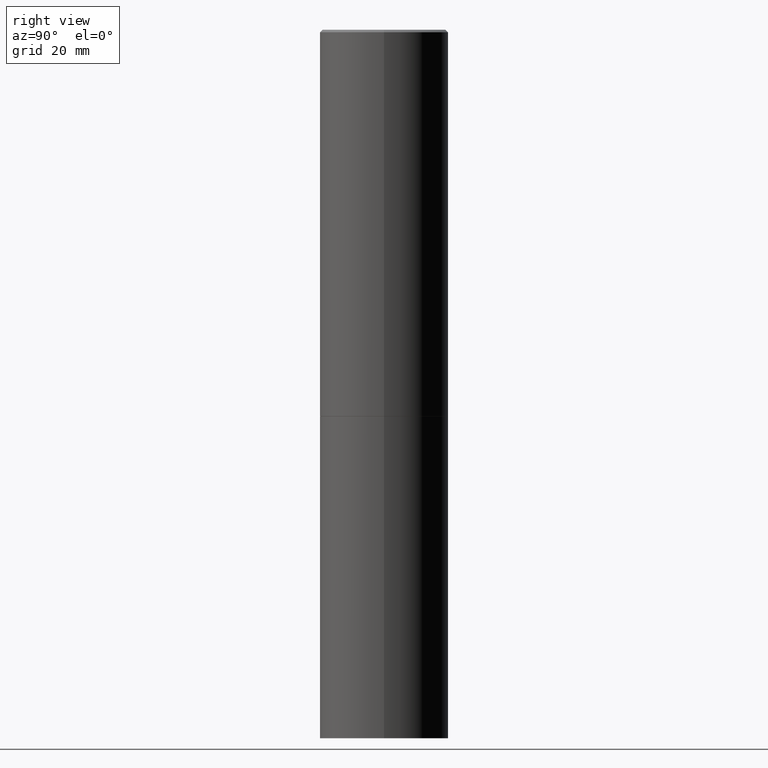
[diagram: clean part render]
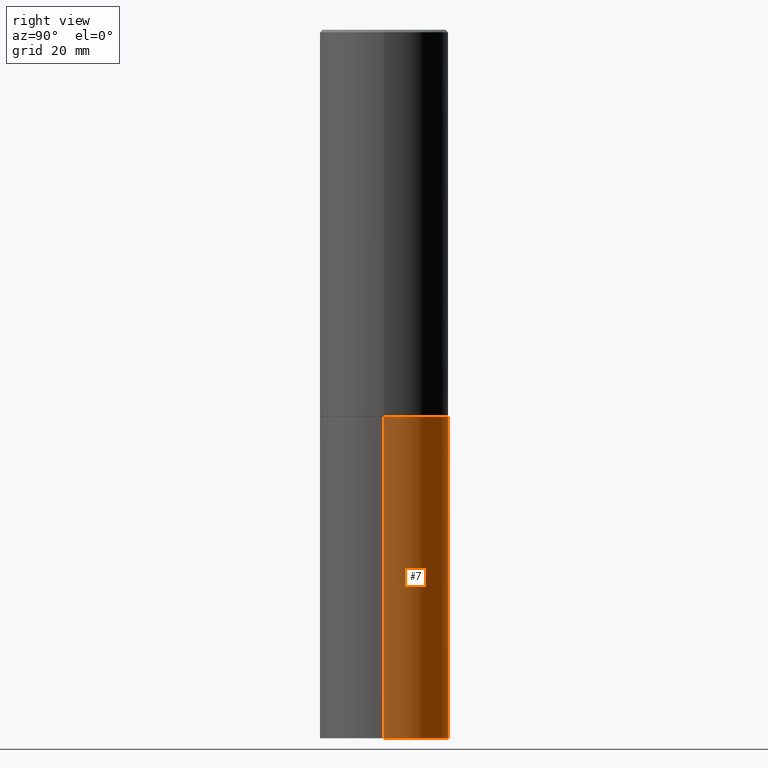
[diagram: same view with one face highlighted and labeled with its STEP entity id]
A machine part, right view. The second image highlights one B-rep face of the part: STEP entity #7.
In plain terms, the highlighted cylindrical surface (partial cylindrical patch) has radius 12.7 mm, axis along (-0, 0, 1).
Its self-contained STEP definition (entity closure, byte-faithful):
#7 = ADVANCED_FACE ( 'NONE', ( #165 ), #28, .T. ) ;
#8 = CARTESIAN_POINT ( 'NONE',  ( 0.5000000000000000000, -3.491481338843133355E-15, 2.438088387897967896E-29 ) ) ;
#24 = ORIENTED_EDGE ( 'NONE', *, *, #151, .T. ) ;
#26 = VERTEX_POINT ( 'NONE', #60 ) ;
#28 = CYLINDRICAL_SURFACE ( 'NONE', #336, 0.5000000000000000000 ) ;
#29 = CIRCLE ( 'NONE', #313, 0.5000000000000000000 ) ;
#43 = EDGE_CURVE ( 'NONE', #129, #364, #29, .T. ) ;
#60 = CARTESIAN_POINT ( 'NONE',  ( 0.5000000000000000000, -2.269462870248043307E-14, -5.500000000000000000 ) ) ;
#98 = EDGE_CURVE ( 'NONE', #26, #129, #233, .T. ) ;
#111 = CARTESIAN_POINT ( 'NONE',  ( 0.000000000000000000, 0.000000000000000000, 0.000000000000000000 ) ) ;
#118 = DIRECTION ( 'NONE',  ( -2.445468806185136597E-29, 3.491481338843145583E-15, 1.000000000000000000 ) ) ;
#129 = VERTEX_POINT ( 'NONE', #320 ) ;
#147 = DIRECTION ( 'NONE',  ( 1.000000000000000000, -6.982962677686262766E-15, 0.000000000000000000 ) ) ;
#150 = CARTESIAN_POINT ( 'NONE',  ( -0.5000000000000000000, -1.128608201128286632E-14, -2.999999999999999556 ) ) ;
#151 = EDGE_CURVE ( 'NONE', #26, #196, #209, .T. ) ;
#158 = EDGE_LOOP ( 'NONE', ( #24, #327, #188, #227 ) ) ;
#165 = FACE_OUTER_BOUND ( 'NONE', #158, .T. ) ;
#173 = DIRECTION ( 'NONE',  ( 1.000000000000000000, -6.982962677686266711E-15, 0.000000000000000000 ) ) ;
#188 = ORIENTED_EDGE ( 'NONE', *, *, #43, .F. ) ;
#196 = VERTEX_POINT ( 'NONE', #319 ) ;
#203 = DIRECTION ( 'NONE',  ( -2.445468806185136597E-29, 3.491481338843145583E-15, 1.000000000000000000 ) ) ;
#208 = CARTESIAN_POINT ( 'NONE',  ( 7.336406418555408669E-29, -1.047444401652943478E-14, -2.999999999999999556 ) ) ;
#209 = CIRCLE ( 'NONE', #363, 0.5000000000000000000 ) ;
#215 = VECTOR ( 'NONE', #230, 39.37007874015748143 ) ;
#224 = DIRECTION ( 'NONE',  ( -2.445468806185136597E-29, 3.491481338843145583E-15, 1.000000000000000000 ) ) ;
#226 = EDGE_CURVE ( 'NONE', #196, #364, #325, .T. ) ;
#227 = ORIENTED_EDGE ( 'NONE', *, *, #98, .F. ) ;
#230 = DIRECTION ( 'NONE',  ( -2.445468806185136877E-29, 3.491481338843145188E-15, 1.000000000000000000 ) ) ;
#233 = LINE ( 'NONE', #8, #215 ) ;
#270 = DIRECTION ( 'NONE',  ( -2.445468806185136877E-29, 3.491481338843145188E-15, 1.000000000000000000 ) ) ;
#289 = CARTESIAN_POINT ( 'NONE',  ( 1.345007843401824904E-28, -1.920314736363729972E-14, -5.500000000000000000 ) ) ;
#313 = AXIS2_PLACEMENT_3D ( 'NONE', #208, #203, #173 ) ;
#315 = DIRECTION ( 'NONE',  ( 1.000000000000000000, -6.982962677686266711E-15, 4.876176775795935793E-29 ) ) ;
#316 = VECTOR ( 'NONE', #270, 39.37007874015748143 ) ;
#319 = CARTESIAN_POINT ( 'NONE',  ( -0.5000000000000000000, -1.128608201128286632E-14, -5.500000000000000000 ) ) ;
#320 = CARTESIAN_POINT ( 'NONE',  ( 0.5000000000000000000, -1.396592535537256813E-14, -2.999999999999999556 ) ) ;
#325 = LINE ( 'NONE', #329, #316 ) ;
#327 = ORIENTED_EDGE ( 'NONE', *, *, #226, .T. ) ;
#329 = CARTESIAN_POINT ( 'NONE',  ( -0.5000000000000000000, 3.552713678800500929E-15, -2.459467545127452891E-29 ) ) ;
#336 = AXIS2_PLACEMENT_3D ( 'NONE', #111, #224, #315 ) ;
#363 = AXIS2_PLACEMENT_3D ( 'NONE', #289, #118, #147 ) ;
#364 = VERTEX_POINT ( 'NONE', #150 ) ;